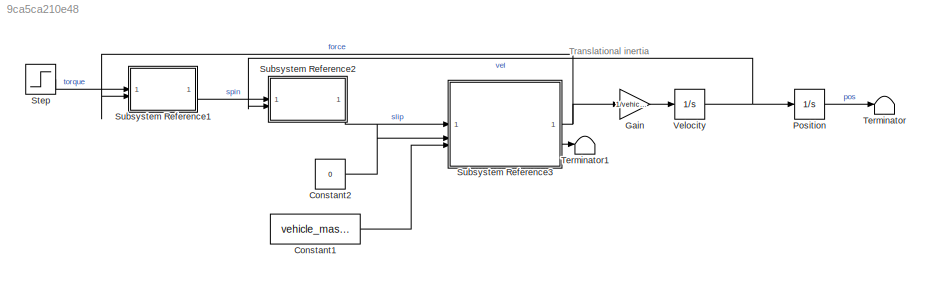
MODEL slx_9ca5ca210e48
KIND model
CONFIG AbsTol = auto
CONFIG EnableMultiTasking = off
CONFIG FixedStep = dt
CONFIG MaxStep = auto
CONFIG MinStep = auto
CONFIG RelTol = 1e-8
CONFIG SampleTimeConstraint = Unconstrained
CONFIG SolverName = VariableStepAuto
CONFIG StartTime = t_0
CONFIG StopTime = t_f
BLOCK [Constant] Constant1
  Value = vehicle_mass*grav
BLOCK [Constant] Constant2
  Value = 0
BLOCK [Gain] Gain
  Gain = 1/vehicle_mass
BLOCK [Integrator] Position
BLOCK [Step] Step
  After = final_torque
  Before = initial_torque
  SampleTime = 0
  Time = step_time
BLOCK [SubSystem] Subsystem Reference1
  ReferencedSubsystem = wheel_spin
  initial_spin = initial_spin
  radius = wheel_radius
  spin_inertia = wheel_inertia
BLOCK [SubSystem] Subsystem Reference2
  ReferencedSubsystem = slip_model
  min_velocity = min_velocity
  radius = wheel_radius
BLOCK [SubSystem] Subsystem Reference3
  ReferencedSubsystem = traction
BLOCK [Terminator] Terminator
BLOCK [Terminator] Terminator1
BLOCK [Integrator] Velocity
ANNOTATION (root): Translational inertia
LINE Constant1:1 -> Subsystem Reference3:3
LINE Constant2:1 -> Subsystem Reference3:2
LINE Gain:1 -> Velocity:1
LINE Position:1 -> Terminator:1
LINE Step:1 -> Subsystem Reference1:1
LINE Subsystem Reference1:1 -> Subsystem Reference2:1
LINE Subsystem Reference2:1 -> Subsystem Reference3:1
NET Subsystem Reference3:1 -> Gain:1, Subsystem Reference1:2
LINE Subsystem Reference3:2 -> Terminator1:1
NET Velocity:1 -> Position:1, Subsystem Reference2:2
note: NET lines group one-source signal fan-out (src -> all destinations, sorted); 1:1 wires keep LINE
